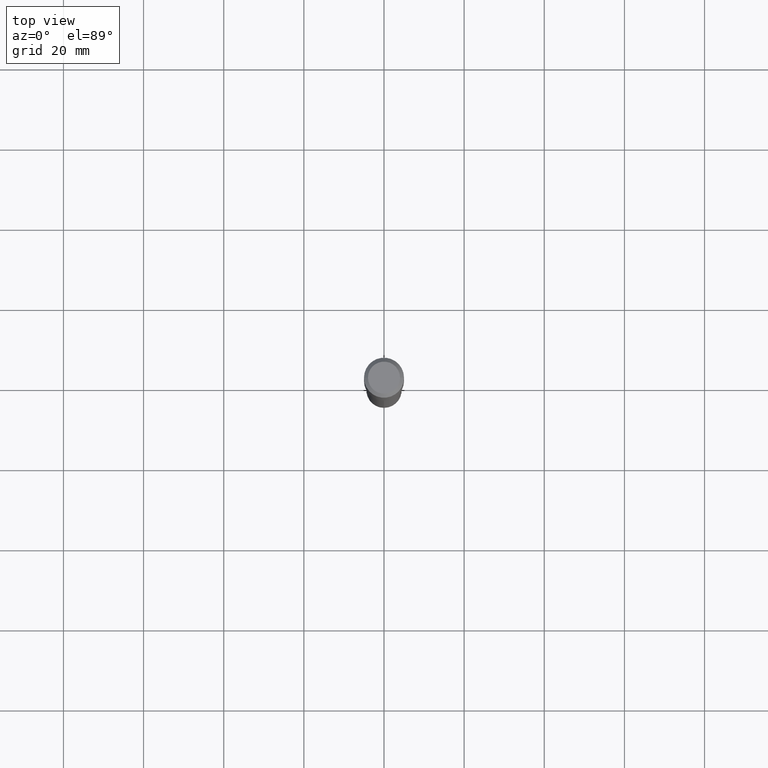
[diagram: clean part render]
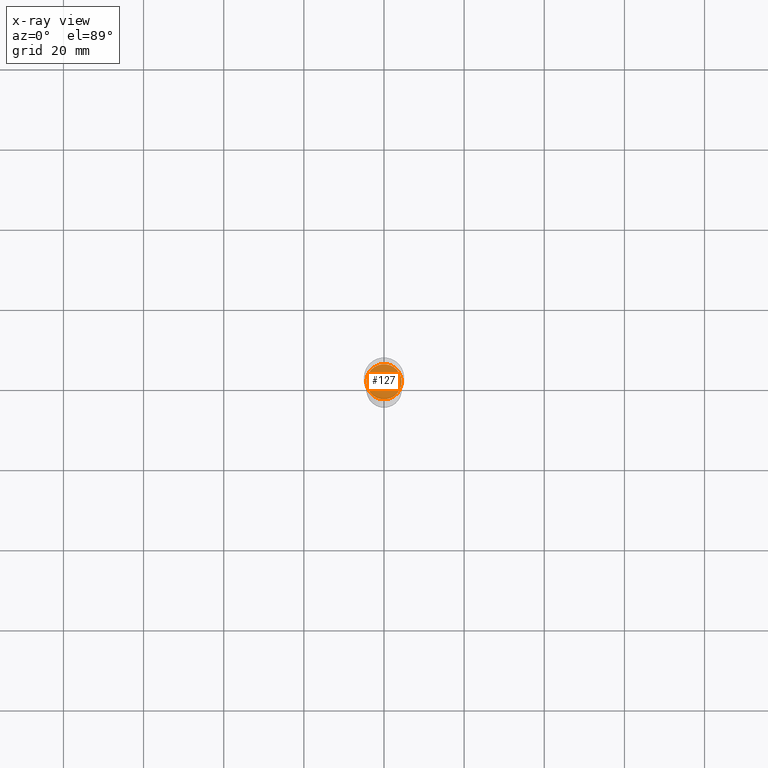
[diagram: x-ray — body ghosted, one internal face saturated and labeled with its STEP entity id]
A machine part, top view, then the same camera in x-ray: the body is ghosted and one INTERNAL B-rep face — a face not visible from any outside direction — is saturated and labeled: STEP entity #127.
In plain terms, the highlighted planar face has unit normal (-0, 0, 1).
Its self-contained STEP definition (entity closure, byte-faithful):
#26 = EDGE_CURVE ( 'NONE', #70, #85, #467, .T. ) ;
#32 = DIRECTION ( 'NONE',  ( 1.000000000000000000, -6.982962677686261189E-15, 0.000000000000000000 ) ) ;
#40 = AXIS2_PLACEMENT_3D ( 'NONE', #340, #449, #32 ) ;
#53 = DIRECTION ( 'NONE',  ( 1.000000000000000000, -6.982962677686261189E-15, 0.000000000000000000 ) ) ;
#70 = VERTEX_POINT ( 'NONE', #200 ) ;
#78 = EDGE_LOOP ( 'NONE', ( #294, #171 ) ) ;
#85 = VERTEX_POINT ( 'NONE', #166 ) ;
#94 = FACE_OUTER_BOUND ( 'NONE', #78, .T. ) ;
#127 = ADVANCED_FACE ( 'NONE', ( #94 ), #250, .F. ) ;
#131 = CARTESIAN_POINT ( 'NONE',  ( 5.795027430016917291E-29, -8.273763328656601391E-15, -2.369699999999999473 ) ) ;
#166 = CARTESIAN_POINT ( 'NONE',  ( 0.1727499999999999869, -9.480070131226902167E-15, -2.369699999999999473 ) ) ;
#171 = ORIENTED_EDGE ( 'NONE', *, *, #26, .F. ) ;
#174 = CARTESIAN_POINT ( 'NONE',  ( 5.795027430016917291E-29, -8.273763328656601391E-15, -2.369699999999999473 ) ) ;
#200 = CARTESIAN_POINT ( 'NONE',  ( -0.1727499999999999869, -7.043651525456917409E-15, -2.369699999999999473 ) ) ;
#250 = PLANE ( 'NONE',  #380 ) ;
#276 = DIRECTION ( 'NONE',  ( -2.438088387897960049E-29, 3.491481338843145188E-15, 1.000000000000000000 ) ) ;
#285 = DIRECTION ( 'NONE',  ( -2.445468806185136597E-29, 3.491481338843145583E-15, 1.000000000000000000 ) ) ;
#293 = DIRECTION ( 'NONE',  ( 1.000000000000000000, -6.982962677686265922E-15, 4.876176775795935793E-29 ) ) ;
#294 = ORIENTED_EDGE ( 'NONE', *, *, #444, .F. ) ;
#340 = CARTESIAN_POINT ( 'NONE',  ( 5.795027430016917291E-29, -8.273763328656601391E-15, -2.369699999999999473 ) ) ;
#380 = AXIS2_PLACEMENT_3D ( 'NONE', #174, #276, #293 ) ;
#429 = AXIS2_PLACEMENT_3D ( 'NONE', #131, #285, #53 ) ;
#444 = EDGE_CURVE ( 'NONE', #85, #70, #460, .T. ) ;
#449 = DIRECTION ( 'NONE',  ( -2.445468806185136597E-29, 3.491481338843145583E-15, 1.000000000000000000 ) ) ;
#460 = CIRCLE ( 'NONE', #40, 0.1727499999999999869 ) ;
#467 = CIRCLE ( 'NONE', #429, 0.1727499999999999869 ) ;